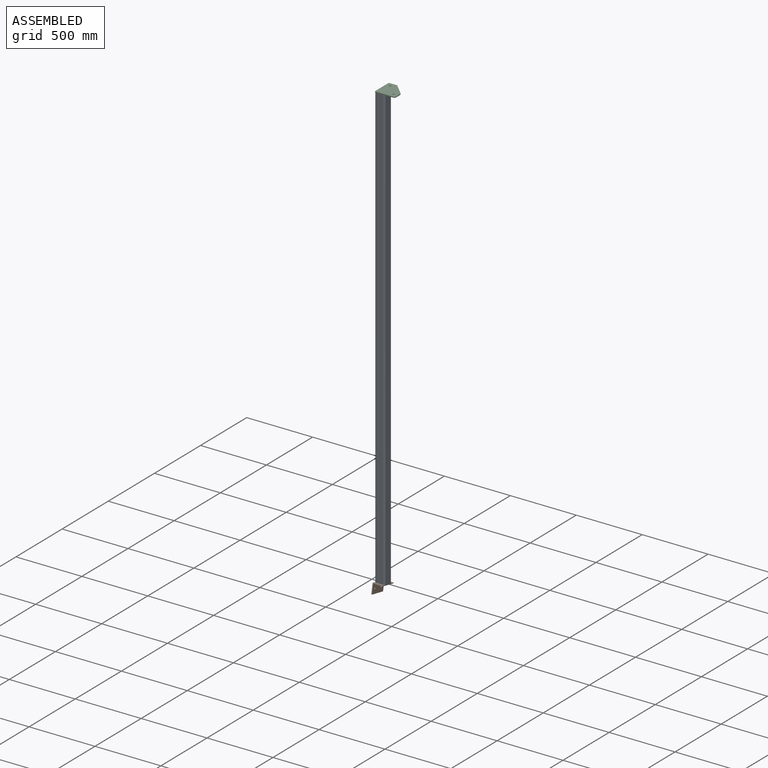
[diagram: assembled view]
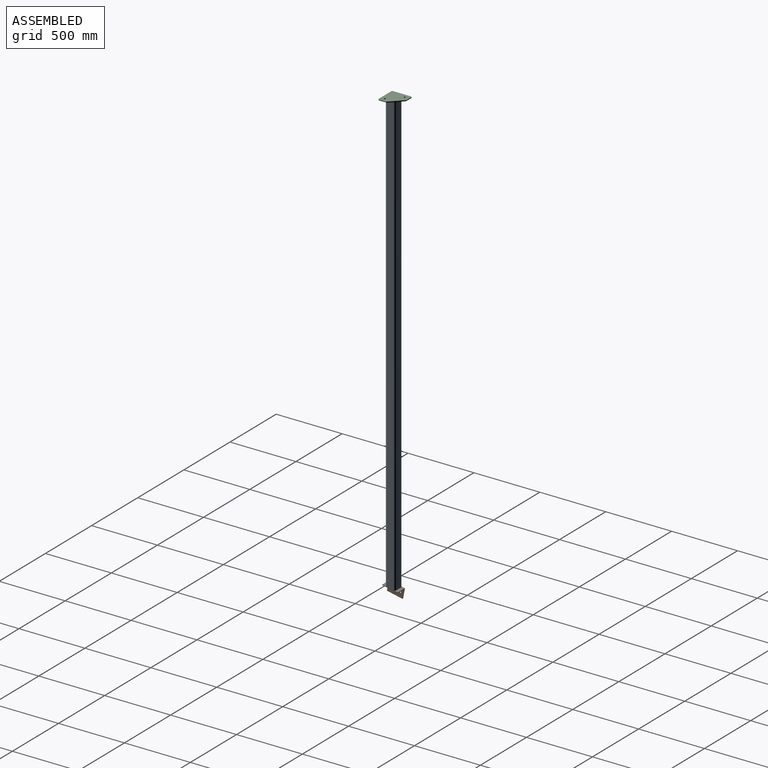
[diagram: assembled view, second angle]
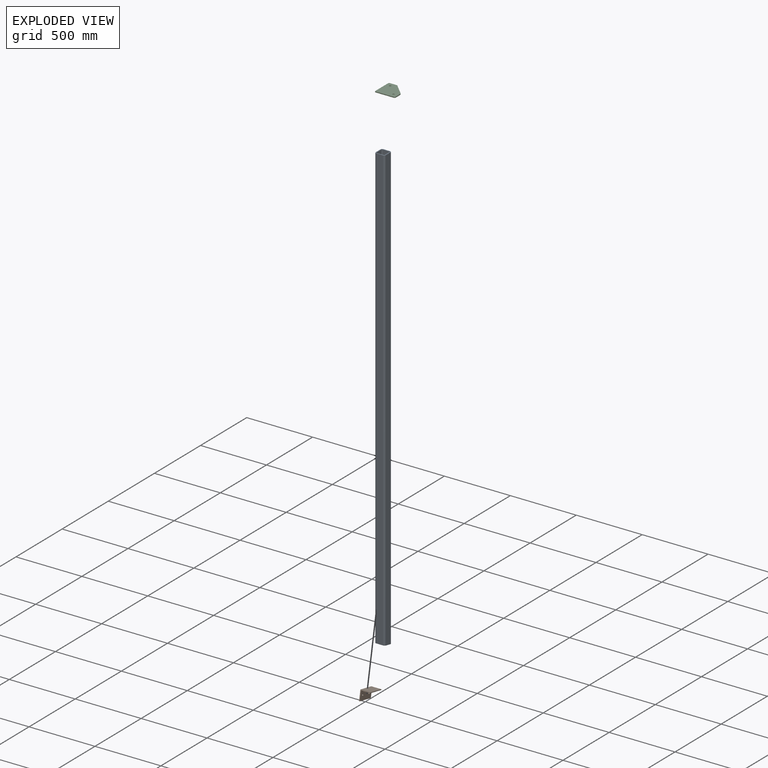
[diagram: exploded view]
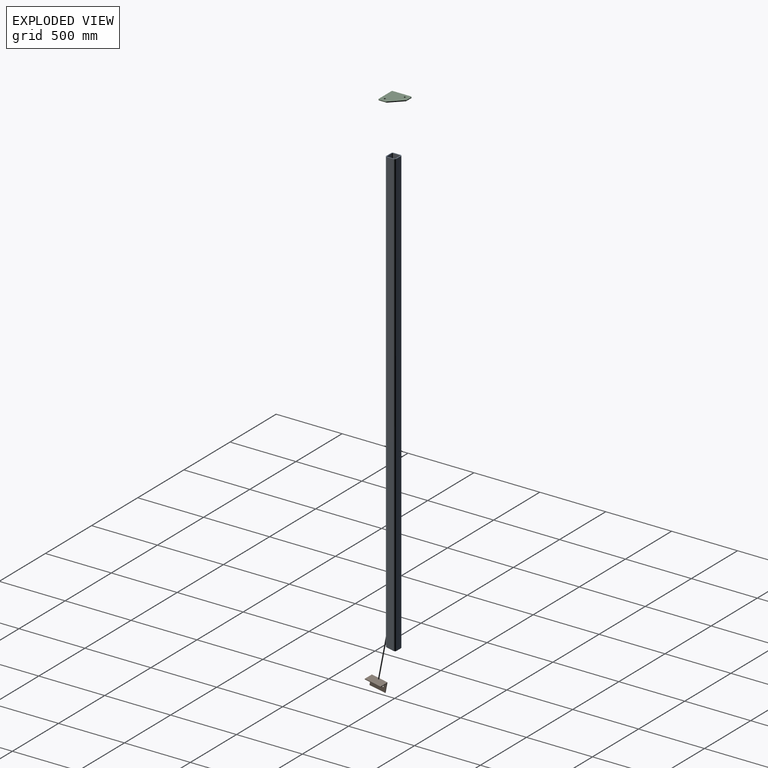
[diagram: exploded view, second angle]
ASSEMBLY  parts=3 mates=2
PART A: 18 faces, bbox 76.2x76.2x3375 mm
  f0: plane 3372.56x50.8mm, normal (0,-1,0), area 171075.1mm2, adj f3,f4,f16,f17
  f1: cylinder r=12.7mm len=3362.68mm, axis (0,0,-1), area 67050.7mm2, adj f13,f14,f16,f17
  f2: cylinder r=12.7mm len=3375.03mm, axis (0,0,-1), area 67310.4mm2, adj f14,f15,f16,f17
  f3: cylinder r=12.7mm len=3375.03mm, axis (0,0,-1), area 67310.4mm2, adj f0,f15,f16,f17
  f4: cylinder r=12.7mm len=3362.68mm, axis (0,0,-1), area 67050.7mm2, adj f0,f13,f16,f17
  f5: cylinder r=6.35mm len=3373.79mm, axis (0,0,-1), area 33648mm2, adj f6,f12,f16,f17
  f6: plane 3372.56x50.8mm, normal (0,-1,0), area 171075.1mm2, adj f5,f7,f16,f17
  f7: cylinder r=6.35mm len=3362.68mm, axis (0,0,-1), area 33533.8mm2, adj f6,f8,f16,f17
  f8: plane 3361.45x50.8mm, normal (1,0,0), area 170761.5mm2, adj f7,f9,f16,f17
  f9: cylinder r=6.35mm len=3362.68mm, axis (0,0,-1), area 33533.8mm2, adj f8,f10,f16,f17
  f10: plane 3372.56x50.8mm, normal (0,1,0), area 171075.1mm2, adj f9,f11,f16,f17
  f11: cylinder r=6.35mm len=3373.79mm, axis (0,0,-1), area 33648mm2, adj f10,f12,f16,f17
  f12: plane 3373.79x50.8mm, normal (-1,0,0), area 171388.6mm2, adj f5,f11,f16,f17
  f13: plane 3360.21x50.8mm, normal (-1,0,0), area 170698.8mm2, adj f1,f4,f16,f17
  f14: plane 3372.56x50.8mm, normal (0,1,0), area 171075.1mm2, adj f1,f2,f16,f17
  f15: plane 3375.03x50.8mm, normal (1,0,0), area 171451.3mm2, adj f2,f3,f16,f17
  f16: plane 76.2x76.2mm, normal (0,0,-1), area 1670.3mm2, adj f0,f1,f2,f3,f4,f5,f6,f7
  f17: plane 76.2x76.2mm, normal (-0.19,0,0.98), area 1701.6mm2, adj f0,f1,f2,f3,f4,f5,f6,f7
PART B: 13 faces, bbox 120.7x76.2x76.2 mm
  f0: plane 76.2x76.2mm, normal (1,0,0), area 942.6mm2, adj f2,f3,f4,f5,f6,f7,f8,f9
  f1: plane 76.2x76.2mm, normal (-1,0,0), area 942.6mm2, adj f2,f3,f4,f5,f6,f7,f8,f9
  f2: cylinder r=3.17mm len=120.65mm, axis (-1,0,0), area 601.7mm2, adj f0,f1,f3,f10
  f3: plane 120.65x57.15mm, normal (0,0,1), area 6895.1mm2, adj f0,f1,f2,f4
  f4: cylinder r=9.52mm len=120.65mm, axis (-1,0,0), area 1805.2mm2, adj f0,f1,f3,f5
  f5: plane 120.65x57.15mm, normal (0,-1,0), area 6641.8mm2, adj f0,f1,f4,f6,f11,f12
  f6: cylinder r=3.17mm len=120.65mm, axis (-1,0,0), area 601.7mm2, adj f0,f1,f5,f7
  f7: plane 120.65x3.18mm, normal (0,0,1), area 383.1mm2, adj f0,f1,f6,f8
  f8: plane 120.65x76.2mm, normal (0,1,0), area 8940.2mm2, adj f0,f1,f7,f9,f11,f12
  f9: plane 120.65x76.2mm, normal (0,0,-1), area 9193.5mm2, adj f0,f1,f8,f10
  f10: plane 120.65x3.18mm, normal (0,-1,0), area 383.1mm2, adj f0,f1,f2,f9
  f11: cylinder r=6.35mm len=12.7mm, axis (0,1,0), area 253.4mm2, adj f5,f8
  f12: cylinder r=6.35mm len=12.7mm, axis (0,1,0), area 253.4mm2, adj f5,f8
PART C: 14 faces, bbox 152.4x152.4x6.4 mm
  f0: cylinder r=7.14mm len=14.29mm, axis (0,0,1), area 285mm2, adj f7,f8
  f1: cylinder r=7.14mm len=14.29mm, axis (0,0,1), area 285mm2, adj f7,f8
  f2: plane 136.53x6.35mm, normal (-1,0,0), area 866.9mm2, adj f7,f8,f12,f13
  f3: plane 50.03x6.35mm, normal (0,1,0), area 317.7mm2, adj f7,f8,f9,f12
  f4: plane 83.32x83.32mm, normal (0.71,0.71,0), area 748.2mm2, adj f7,f8,f9,f10
  f5: plane 50.03x6.35mm, normal (1,0,0), area 317.7mm2, adj f7,f8,f10,f11
  f6: plane 136.53x6.35mm, normal (0,-1,0), area 866.9mm2, adj f7,f8,f11,f13
  f7: plane 152.4x152.4mm, normal (0,0,-1), area 18902mm2, adj f0,f1,f2,f3,f4,f5,f6,f9
  f8: plane 152.4x152.4mm, normal (0,0,1), area 18902mm2, adj f0,f1,f2,f3,f4,f5,f6,f9
  f9: cylinder r=9.53mm len=6.74mm, axis (0,0,1), area 47.5mm2, adj f3,f4,f7,f8
  f10: cylinder r=9.53mm len=6.74mm, axis (0,0,1), area 47.5mm2, adj f4,f5,f7,f8
  f11: cylinder r=9.53mm len=9.53mm, axis (0,0,1), area 95mm2, adj f5,f6,f7,f8
  f12: cylinder r=9.53mm len=9.53mm, axis (0,0,1), area 95mm2, adj f2,f3,f7,f8
  f13: cylinder r=6.35mm len=6.35mm, axis (0,0,1), area 63.3mm2, adj f2,f6,f7,f8
PLACE A rot(axis=(-0.71,-0.71,0),180deg) t=(-405.3,58.54,-3993.52)mm
PLACE B rot(axis=(0.71,-0.71,0.07),172.2deg) t=(-443.4,-0.67,-3974.6)mm
PLACE C t=(-441.81,20.44,-612.14)mm
MATE fastened A.f17 <-> B.f9  axis (0,-0.19,-0.98) through (-405.3,58.54,-3986.11)mm
MATE fastened A.f16 <-> C.f7  axis (0,0,1) through (-405.3,20.44,-618.49)mm
